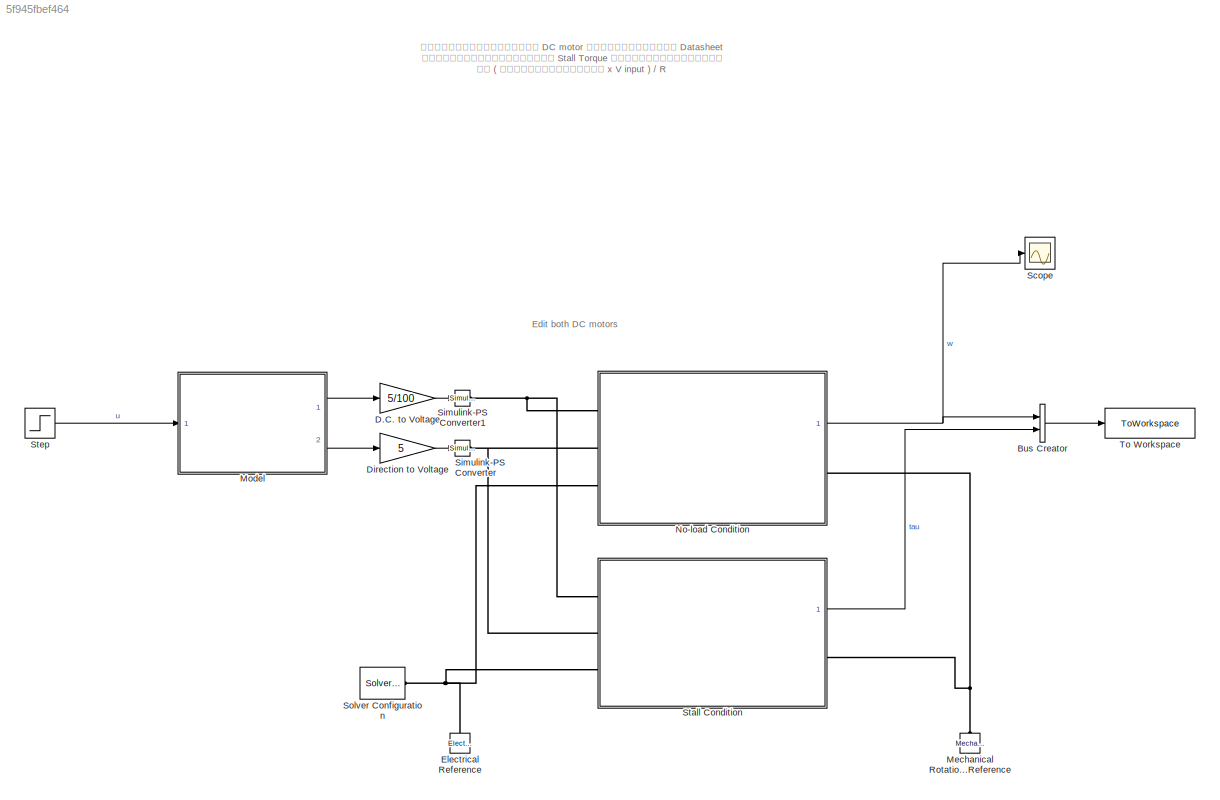
MODEL slx_5f945fbef464
KIND model
CONFIG AbsTol = auto
CONFIG EnableMultiTasking = off
CONFIG FixedStep = 0.01
CONFIG MaxStep = auto
CONFIG MinStep = auto
CONFIG RelTol = 1e-3
CONFIG SampleTimeConstraint = Unconstrained
CONFIG SolverName = VariableStepAuto
CONFIG StartTime = 0.0
CONFIG StopTime = 10.0
BLOCK [BusCreator] Bus Creator
  DisplayOption = bar
  InheritFromInputs = on
  Inputs = 2
  Ports = [2, 1]
BLOCK [Gain] D.C. to Voltage
  Gain = 5/100
BLOCK [Gain] Direction to Voltage
  Gain = 5
BLOCK [Reference] Electrical Reference  REF=fl_lib/Electrical/Electrical Elements/Electrical Reference
  NameLocation = right
  Ports = [0, 0, 0, 0, 0, 1]
  SourceBlock = fl_lib/Electrical/Electrical Elements/Electrical Reference
  SourceProductBaseCode = SS
  SourceType = Electrical Reference
BLOCK [Reference] Mechanical Rotational Reference  REF=fl_lib/Mechanical/Rotational Elements/Mechanical
Rotational Reference
  NameLocation = right
  Ports = [0, 0, 0, 0, 0, 1]
  SourceBlock = fl_lib/Mechanical/Rotational Elements/Mechanical\nRotational Reference
  SourceProductBaseCode = SS
  SourceType = Mechanical\nRotational Reference
BLOCK [ModelReference] Model
  ModelNameDialog = signal_converter.slx
  ModelReferenceVersion = 2.1
  Ports = [1, 2]
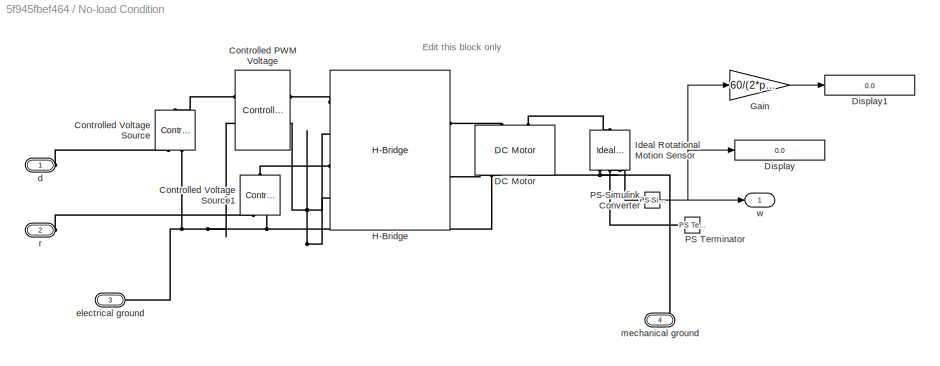
BLOCK [SubSystem] No-load Condition
  Ports = [0, 1, 0, 0, 0, 3, 1]
  RequestExecContextInheritance = off
BLOCK [Reference] No-load Condition/Controlled PWM Voltage  REF=ee_lib/Integrated Circuits/Controlled PWM
Voltage
  Ports = [0, 0, 0, 0, 0, 2, 2]
  SourceBlock = ee_lib/Integrated Circuits/Controlled PWM\nVoltage
  SourceProductBaseCode = PS
  SourceType = Controlled PWM\nVoltage
BLOCK [Reference] No-load Condition/Controlled Voltage Source  REF=fl_lib/Electrical/Electrical Sources/Controlled Voltage
Source
  NameLocation = right
  Ports = [0, 0, 0, 0, 0, 1, 2]
  SourceBlock = fl_lib/Electrical/Electrical Sources/Controlled Voltage\nSource
  SourceProductBaseCode = SS
  SourceType = Controlled Voltage\nSource
BLOCK [Reference] No-load Condition/Controlled Voltage Source1  REF=fl_lib/Electrical/Electrical Sources/Controlled Voltage
Source
  NameLocation = right
  Ports = [0, 0, 0, 0, 0, 1, 2]
  SourceBlock = fl_lib/Electrical/Electrical Sources/Controlled Voltage\nSource
  SourceProductBaseCode = SS
  SourceType = Controlled Voltage\nSource
BLOCK [Reference] No-load Condition/DC Motor  REF=ee_lib/Electromechanical/Brushed Motors/DC Motor
  NameLocation = right
  Ports = [0, 0, 0, 0, 0, 2, 2]
  SourceBlock = ee_lib/Electromechanical/Brushed Motors/DC Motor
  SourceProductBaseCode = PS
  SourceType = DC Motor
BLOCK [Display] No-load Condition/Display
  Decimation = 1
  Format = long
  Ports = [1]
BLOCK [Display] No-load Condition/Display1
  Decimation = 1
  Format = long
  Ports = [1]
BLOCK [Gain] No-load Condition/Gain
  Gain = 60/(2*pi)
BLOCK [Reference] No-load Condition/H-Bridge  REF=ee_lib/Semiconductors &
Converters/Converters/H-Bridge
  Ports = [0, 0, 0, 0, 0, 4, 2]
  SourceBlock = ee_lib/Semiconductors &\nConverters/Converters/H-Bridge
  SourceProductBaseCode = PS
  SourceType = H-Bridge
BLOCK [Reference] No-load Condition/Ideal Rotational Motion Sensor  REF=fl_lib/Mechanical/Mechanical Sensors/Ideal Rotational
Motion Sensor
  NameLocation = right
  Ports = [0, 0, 0, 0, 0, 1, 3]
  SourceBlock = fl_lib/Mechanical/Mechanical Sensors/Ideal Rotational\nMotion Sensor
  SourceProductBaseCode = SS
  SourceType = Ideal Rotational\nMotion Sensor
BLOCK [Reference] No-load Condition/PS Terminator  REF=fl_lib/Physical Signals/Sinks/PS Terminator
  Ports = [0, 0, 0, 0, 0, 1]
  SourceBlock = fl_lib/Physical Signals/Sinks/PS Terminator
  SourceProductBaseCode = SS
  SourceType = PS Terminator
BLOCK [Reference] No-load Condition/PS-Simulink Converter  REF=nesl_utility/PS-Simulink
Converter
  Ports = [0, 1, 0, 0, 0, 1]
  SourceBlock = nesl_utility/PS-Simulink\nConverter
  SourceProductBaseCode = PW,SS
  SourceType = PS-Simulink\nConverter
BLOCK [PMIOPort] No-load Condition/d
  Side = Left
BLOCK [PMIOPort] No-load Condition/electrical ground
  Port = 3
  Side = Left
BLOCK [PMIOPort] No-load Condition/mechanical ground
  NameLocation = top
  Port = 4
  Side = Right
BLOCK [PMIOPort] No-load Condition/r
  Port = 2
  Side = Left
BLOCK [Outport] No-load Condition/w
BLOCK [Scope] Scope
  Floating = off
  NumInputPorts = 1
  Ports = [1]
  ScopeSpecificationString = Simulink.scopes.TimeScopeBlockCfg('CurrentConfiguration', extmgr.ConfigurationSet(extmgr.Configuration('Core','General UI',true),extmgr.Configuration('Core','Source UI',true),extmgr.Configuration('Sources','WiredSimulink',true),extmgr.Configuration('Visuals','Time Domain',true,'SerializedDisplays',{struct('MinYLimReal','-7.29924','MaxYLimReal','65.69316','YLabelReal','','MinYLimMag','0.00000','Max...<+1325ch>
BLOCK [Reference] Simulink-PS Converter  REF=nesl_utility/Simulink-PS
Converter
  Ports = [1, 0, 0, 0, 0, 0, 1]
  SourceBlock = nesl_utility/Simulink-PS\nConverter
  SourceProductBaseCode = PW,SS
  SourceType = Simulink-PS\nConverter
BLOCK [Reference] Simulink-PS Converter1  REF=nesl_utility/Simulink-PS
Converter
  Ports = [1, 0, 0, 0, 0, 0, 1]
  SourceBlock = nesl_utility/Simulink-PS\nConverter
  SourceProductBaseCode = PW,SS
  SourceType = Simulink-PS\nConverter
BLOCK [Reference] Solver Configuration  REF=nesl_utility/Solver
Configuration
  Ports = [0, 0, 0, 0, 0, 0, 1]
  SourceBlock = nesl_utility/Solver\nConfiguration
  SourceProductBaseCode = PW,SS
  SourceType = Solver\nConfiguration
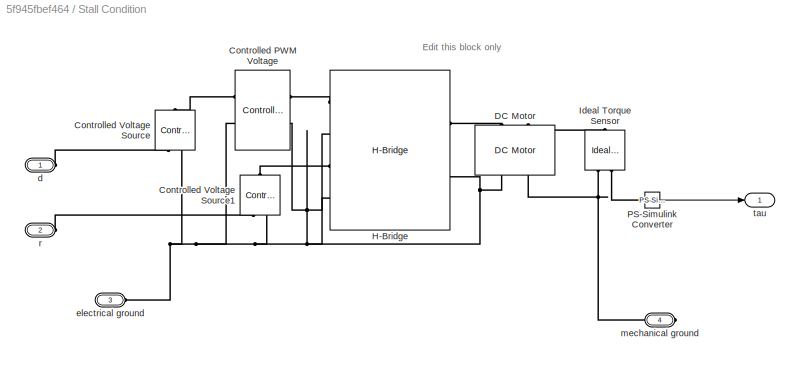
BLOCK [SubSystem] Stall Condition
  Ports = [0, 1, 0, 0, 0, 3, 1]
  RequestExecContextInheritance = off
BLOCK [Reference] Stall Condition/Controlled PWM Voltage  REF=ee_lib/Integrated Circuits/Controlled PWM
Voltage
  Ports = [0, 0, 0, 0, 0, 2, 2]
  SourceBlock = ee_lib/Integrated Circuits/Controlled PWM\nVoltage
  SourceProductBaseCode = PS
  SourceType = Controlled PWM\nVoltage
BLOCK [Reference] Stall Condition/Controlled Voltage Source  REF=fl_lib/Electrical/Electrical Sources/Controlled Voltage
Source
  NameLocation = right
  Ports = [0, 0, 0, 0, 0, 1, 2]
  SourceBlock = fl_lib/Electrical/Electrical Sources/Controlled Voltage\nSource
  SourceProductBaseCode = SS
  SourceType = Controlled Voltage\nSource
BLOCK [Reference] Stall Condition/Controlled Voltage Source1  REF=fl_lib/Electrical/Electrical Sources/Controlled Voltage
Source
  NameLocation = right
  Ports = [0, 0, 0, 0, 0, 1, 2]
  SourceBlock = fl_lib/Electrical/Electrical Sources/Controlled Voltage\nSource
  SourceProductBaseCode = SS
  SourceType = Controlled Voltage\nSource
BLOCK [Reference] Stall Condition/DC Motor  REF=ee_lib/Electromechanical/Brushed Motors/DC Motor
  NameLocation = right
  Ports = [0, 0, 0, 0, 0, 2, 2]
  SourceBlock = ee_lib/Electromechanical/Brushed Motors/DC Motor
  SourceProductBaseCode = PS
  SourceType = DC Motor
BLOCK [Reference] Stall Condition/H-Bridge  REF=ee_lib/Semiconductors &
Converters/Converters/H-Bridge
  Ports = [0, 0, 0, 0, 0, 4, 2]
  SourceBlock = ee_lib/Semiconductors &\nConverters/Converters/H-Bridge
  SourceProductBaseCode = PS
  SourceType = H-Bridge
BLOCK [Reference] Stall Condition/Ideal Torque Sensor  REF=fl_lib/Mechanical/Mechanical Sensors/Ideal Torque Sensor
  NameLocation = left
  Ports = [0, 0, 0, 0, 0, 1, 2]
  SourceBlock = fl_lib/Mechanical/Mechanical Sensors/Ideal Torque Sensor
  SourceProductBaseCode = SS
  SourceType = Ideal Torque Sensor
BLOCK [Reference] Stall Condition/PS-Simulink Converter  REF=nesl_utility/PS-Simulink
Converter
  Ports = [0, 1, 0, 0, 0, 1]
  SourceBlock = nesl_utility/PS-Simulink\nConverter
  SourceProductBaseCode = PW,SS
  SourceType = PS-Simulink\nConverter
BLOCK [PMIOPort] Stall Condition/d
  Side = Left
BLOCK [PMIOPort] Stall Condition/electrical ground
  Port = 3
  Side = Left
BLOCK [PMIOPort] Stall Condition/mechanical ground
  NameLocation = top
  Port = 4
  Side = Right
BLOCK [PMIOPort] Stall Condition/r
  Port = 2
  Side = Left
BLOCK [Outport] Stall Condition/tau
BLOCK [Step] Step
  After = 120
  SampleTime = 0
BLOCK [ToWorkspace] To Workspace
  FixptAsFi = on
  MaxDataPoints = inf
  Ports = [1]
  SampleTime = -1
  SaveFormat = Timeseries
  VariableName = motor_test
ANNOTATION (root): Edit both DC motors
ANNOTATION (root): เปลี่ยนค่าต่างๆใน DC motor อ้างอิงค่าจาก Datasheet โดยที่เราจะหาค่าของ Stall Torque ของมอเตอร์ได้จาก นำ ( ค่าคงที่มอเตอร์ x V input ) / R
ANNOTATION No-load Condition: Edit this block only
ANNOTATION Stall Condition: Edit this block only
LINE Bus Creator:1 -> To Workspace:1
LINE D.C. to Voltage:1 -> Simulink-PS Converter1:1
LINE Direction to Voltage:1 -> Simulink-PS Converter:1
LINE Model:1 -> D.C. to Voltage:1
LINE Model:2 -> Direction to Voltage:1
LINE No-load Condition/Gain:1 -> No-load Condition/Display1:1
NET No-load Condition/PS-Simulink Converter:1 -> No-load Condition/Display:1, No-load Condition/Gain:1, No-load Condition/w:1
NET No-load Condition:1 -> Bus Creator:1, Scope:1
LINE Stall Condition/PS-Simulink Converter:1 -> Stall Condition/tau:1
LINE Stall Condition:1 -> Bus Creator:2
LINE Step:1 -> Model:1
PNET net1: Electrical Reference:LConn1 -- No-load Condition:LConn3 -- Solver Configuration:RConn1 -- Stall Condition:LConn3
PNET net2: Mechanical Rotational Reference:LConn1 -- No-load Condition:RConn1 -- Stall Condition:RConn1
PLINE No-load Condition/Controlled PWM Voltage:LConn1 -- No-load Condition/Controlled Voltage Source:LConn1
PNET net3: No-load Condition/Controlled PWM Voltage:LConn2 -- No-load Condition/Controlled PWM Voltage:RConn2 -- No-load Condition/Controlled Voltage Source1:RConn2 -- No-load Condition/Controlled Voltage Source:RConn2 -- No-load Condition/DC Motor:RConn1 -- No-load Condition/H-Bridge:LConn2 -- No-load Condition/H-Bridge:LConn4 -- No-load Condition/H-Bridge:RConn2 -- No-load Condition/electrical ground:RConn1
PLINE No-load Condition/Controlled PWM Voltage:RConn1 -- No-load Condition/H-Bridge:LConn1
PLINE No-load Condition/Controlled Voltage Source1:LConn1 -- No-load Condition/H-Bridge:LConn3
PLINE No-load Condition/Controlled Voltage Source1:RConn1 -- No-load Condition/r:RConn1
PLINE No-load Condition/Controlled Voltage Source:RConn1 -- No-load Condition/d:RConn1
PLINE No-load Condition/DC Motor:LConn1 -- No-load Condition/H-Bridge:RConn1
PLINE No-load Condition/DC Motor:LConn2 -- No-load Condition/Ideal Rotational Motion Sensor:LConn1
PNET net4: No-load Condition/DC Motor:RConn2 -- No-load Condition/Ideal Rotational Motion Sensor:RConn1 -- No-load Condition/mechanical ground:RConn1
PLINE No-load Condition/Ideal Rotational Motion Sensor:RConn2 -- No-load Condition/PS-Simulink Converter:LConn1
PLINE No-load Condition/Ideal Rotational Motion Sensor:RConn3 -- No-load Condition/PS Terminator:LConn1
PNET net5: No-load Condition:LConn1 -- Simulink-PS Converter1:RConn1 -- Stall Condition:LConn1
PNET net6: No-load Condition:LConn2 -- Simulink-PS Converter:RConn1 -- Stall Condition:LConn2
PLINE Stall Condition/Controlled PWM Voltage:LConn1 -- Stall Condition/Controlled Voltage Source:LConn1
PNET net7: Stall Condition/Controlled PWM Voltage:LConn2 -- Stall Condition/Controlled PWM Voltage:RConn2 -- Stall Condition/Controlled Voltage Source1:RConn2 -- Stall Condition/Controlled Voltage Source:RConn2 -- Stall Condition/DC Motor:RConn1 -- Stall Condition/H-Bridge:LConn2 -- Stall Condition/H-Bridge:LConn4 -- Stall Condition/H-Bridge:RConn2 -- Stall Condition/electrical ground:RConn1
PLINE Stall Condition/Controlled PWM Voltage:RConn1 -- Stall Condition/H-Bridge:LConn1
PLINE Stall Condition/Controlled Voltage Source1:LConn1 -- Stall Condition/H-Bridge:LConn3
PLINE Stall Condition/Controlled Voltage Source1:RConn1 -- Stall Condition/r:RConn1
PLINE Stall Condition/Controlled Voltage Source:RConn1 -- Stall Condition/d:RConn1
PLINE Stall Condition/DC Motor:LConn1 -- Stall Condition/H-Bridge:RConn1
PLINE Stall Condition/DC Motor:LConn2 -- Stall Condition/Ideal Torque Sensor:LConn1
PNET net8: Stall Condition/DC Motor:RConn2 -- Stall Condition/Ideal Torque Sensor:RConn1 -- Stall Condition/mechanical ground:RConn1
PLINE Stall Condition/Ideal Torque Sensor:RConn2 -- Stall Condition/PS-Simulink Converter:LConn1
note: NET lines group one-source signal fan-out (src -> all destinations, sorted); 1:1 wires keep LINE; PNET lines group multi-terminal physical nets as a canonical sorted terminal list (undirected conserving connections); 2-terminal nets keep the pairwise PLINE form
